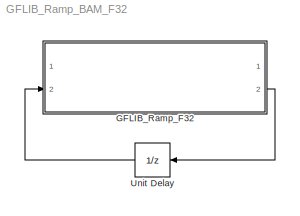
MODEL GFLIB_Ramp_BAM_F32
KIND model
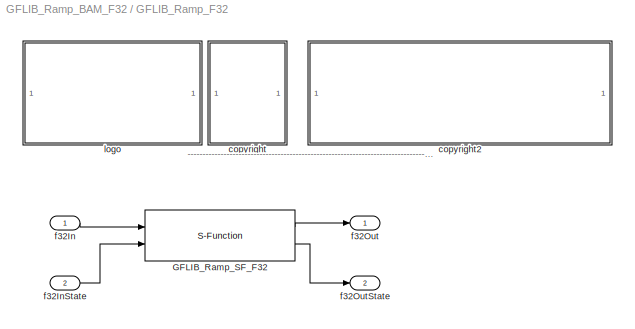
BLOCK [SubSystem] GFLIB_Ramp_F32
  Ports = [2, 2]
  RequestExecContextInheritance = off
  SID = 1
BLOCK [S-Function] GFLIB_Ramp_F32/GFLIB_Ramp_SF_F32
  EnableBusSupport = off
  FunctionName = GFLIB_Ramp_SF_F32
  Parameters = f32RampUp,f32RampDown
  Ports = [2, 2]
  SID = 4
BLOCK [SubSystem] GFLIB_Ramp_F32/<copyright redacted>
  Ports = []
  RequestExecContextInheritance = off
  SID = 5
BLOCK [SubSystem] GFLIB_Ramp_F32/copyright2
  Ports = []
  RequestExecContextInheritance = off
  SID = 6
BLOCK [Inport] GFLIB_Ramp_F32/f32In
  IconDisplay = Port number
  SID = 2
BLOCK [Inport] GFLIB_Ramp_F32/f32InState
  IconDisplay = Port number
  Port = 2
  SID = 3
BLOCK [Outport] GFLIB_Ramp_F32/f32Out
  IconDisplay = Port number
  SID = 8
BLOCK [Outport] GFLIB_Ramp_F32/f32OutState
  IconDisplay = Port number
  Port = 2
  SID = 9
BLOCK [SubSystem] GFLIB_Ramp_F32/logo
  Ports = []
  RequestExecContextInheritance = off
  SID = 7
BLOCK [UnitDelay] Unit Delay
  SID = 11
  SampleTime = -1
ANNOTATION GFLIB_Ramp_F32: ---------------------------------------------------------------------------------------------------------------------------------------------------------------------------------------------------
LINE GFLIB_Ramp_F32/GFLIB_Ramp_SF_F32:1 -> GFLIB_Ramp_F32/f32Out:1
LINE GFLIB_Ramp_F32/GFLIB_Ramp_SF_F32:2 -> GFLIB_Ramp_F32/f32OutState:1
LINE GFLIB_Ramp_F32/f32In:1 -> GFLIB_Ramp_F32/GFLIB_Ramp_SF_F32:1
LINE GFLIB_Ramp_F32/f32InState:1 -> GFLIB_Ramp_F32/GFLIB_Ramp_SF_F32:2
LINE GFLIB_Ramp_F32:2 -> Unit Delay:1
LINE Unit Delay:1 -> GFLIB_Ramp_F32:2
